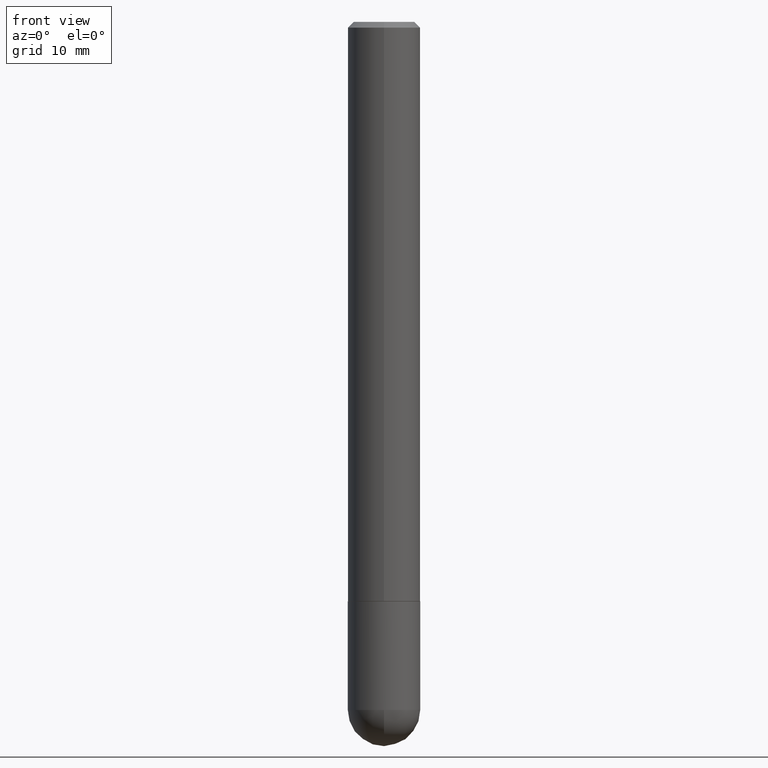
[diagram: clean part render]
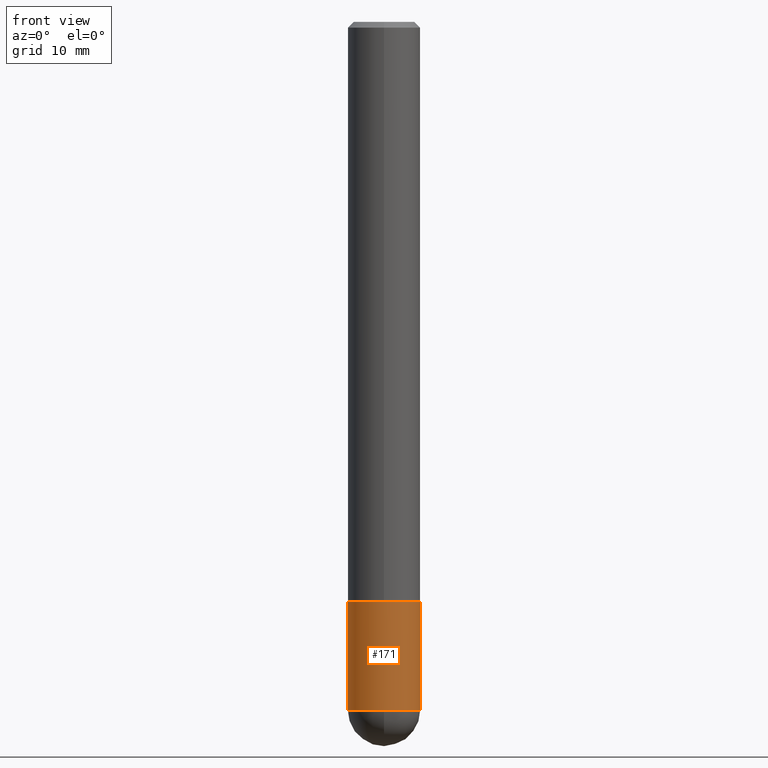
[diagram: same view with one face highlighted and labeled with its STEP entity id]
A machine part, front view. The second image highlights one B-rep face of the part: STEP entity #171.
In plain terms, the highlighted cylindrical surface (edge-blend (fillet) strip) has radius 3.175 mm, axis along (-0, 0, 1).
Its self-contained STEP definition (entity closure, byte-faithful):
#7 = ORIENTED_EDGE ( 'NONE', *, *, #237, .F. ) ;
#42 = DIRECTION ( 'NONE',  ( 1.000000000000000000, -6.982962677686269077E-15, 0.000000000000000000 ) ) ;
#56 = CARTESIAN_POINT ( 'NONE',  ( -0.1250000000000000278, 8.881784197001254296E-16, -6.148668862818634329E-30 ) ) ;
#57 = LINE ( 'NONE', #56, #334 ) ;
#61 = VERTEX_POINT ( 'NONE', #222 ) ;
#70 = VERTEX_POINT ( 'NONE', #109 ) ;
#72 = EDGE_LOOP ( 'NONE', ( #7, #325, #327, #353, #94 ) ) ;
#80 = DIRECTION ( 'NONE',  ( -2.445468806185136597E-29, 3.491481338843145583E-15, 1.000000000000000000 ) ) ;
#82 = AXIS2_PLACEMENT_3D ( 'NONE', #236, #332, #42 ) ;
#94 = ORIENTED_EDGE ( 'NONE', *, *, #331, .F. ) ;
#104 = CARTESIAN_POINT ( 'NONE',  ( 4.890937612370273194E-29, -6.982962677686291165E-15, -2.000000000000000000 ) ) ;
#109 = CARTESIAN_POINT ( 'NONE',  ( -8.881784197000695190E-16, -0.1250000000000086320, -2.374999999999999112 ) ) ;
#113 = VECTOR ( 'NONE', #212, 39.37007874015748143 ) ;
#118 = EDGE_CURVE ( 'NONE', #202, #255, #251, .T. ) ;
#120 = CARTESIAN_POINT ( 'NONE',  ( 0.000000000000000000, 0.000000000000000000, 0.000000000000000000 ) ) ;
#131 = DIRECTION ( 'NONE',  ( -2.445468806185136597E-29, 3.491481338843145583E-15, 1.000000000000000000 ) ) ;
#132 = AXIS2_PLACEMENT_3D ( 'NONE', #120, #80, #340 ) ;
#146 = CIRCLE ( 'NONE', #365, 0.1250000000000000278 ) ;
#152 = CIRCLE ( 'NONE', #82, 0.1250000000000000278 ) ;
#169 = DIRECTION ( 'NONE',  ( 1.000000000000000000, -6.982962677686269077E-15, 0.000000000000000000 ) ) ;
#171 = ADVANCED_FACE ( 'NONE', ( #307 ), #312, .T. ) ;
#183 = CARTESIAN_POINT ( 'NONE',  ( 0.1250000000000000278, -8.728703347107836346E-16, 6.095220969744921142E-30 ) ) ;
#184 = AXIS2_PLACEMENT_3D ( 'NONE', #104, #231, #169 ) ;
#188 = CARTESIAN_POINT ( 'NONE',  ( 0.1250000000000000278, -7.855833012397075293E-15, -2.000000000000000000 ) ) ;
#200 = VERTEX_POINT ( 'NONE', #274 ) ;
#202 = VERTEX_POINT ( 'NONE', #402 ) ;
#212 = DIRECTION ( 'NONE',  ( -2.445468806185136877E-29, 3.491481338843145188E-15, 1.000000000000000000 ) ) ;
#222 = CARTESIAN_POINT ( 'NONE',  ( -0.1250000000000000278, -6.749437009019255015E-15, -2.000000000000000000 ) ) ;
#231 = DIRECTION ( 'NONE',  ( -2.445468806185136597E-29, 3.491481338843145583E-15, 1.000000000000000000 ) ) ;
#236 = CARTESIAN_POINT ( 'NONE',  ( 5.807988414689698296E-29, -8.292268179752468540E-15, -2.374999999999999556 ) ) ;
#237 = EDGE_CURVE ( 'NONE', #200, #61, #57, .T. ) ;
#251 = LINE ( 'NONE', #183, #113 ) ;
#255 = VERTEX_POINT ( 'NONE', #188 ) ;
#258 = CIRCLE ( 'NONE', #184, 0.1250000000000000278 ) ;
#260 = CARTESIAN_POINT ( 'NONE',  ( 5.807988414689698296E-29, -8.292268179752468540E-15, -2.374999999999999556 ) ) ;
#274 = CARTESIAN_POINT ( 'NONE',  ( -0.1250000000000000278, -6.749437009019255804E-15, -2.374999999999999556 ) ) ;
#307 = FACE_OUTER_BOUND ( 'NONE', #72, .T. ) ;
#312 = CYLINDRICAL_SURFACE ( 'NONE', #132, 0.1250000000000000278 ) ;
#313 = EDGE_CURVE ( 'NONE', #200, #70, #146, .T. ) ;
#325 = ORIENTED_EDGE ( 'NONE', *, *, #313, .T. ) ;
#327 = ORIENTED_EDGE ( 'NONE', *, *, #374, .T. ) ;
#329 = DIRECTION ( 'NONE',  ( 1.000000000000000000, -6.982962677686269077E-15, 0.000000000000000000 ) ) ;
#331 = EDGE_CURVE ( 'NONE', #61, #255, #258, .T. ) ;
#332 = DIRECTION ( 'NONE',  ( -2.445468806185136597E-29, 3.491481338843145583E-15, 1.000000000000000000 ) ) ;
#334 = VECTOR ( 'NONE', #407, 39.37007874015748143 ) ;
#340 = DIRECTION ( 'NONE',  ( 1.000000000000000000, -6.982962677686267499E-15, 4.876176775795935793E-29 ) ) ;
#353 = ORIENTED_EDGE ( 'NONE', *, *, #118, .T. ) ;
#365 = AXIS2_PLACEMENT_3D ( 'NONE', #260, #131, #329 ) ;
#374 = EDGE_CURVE ( 'NONE', #70, #202, #152, .T. ) ;
#402 = CARTESIAN_POINT ( 'NONE',  ( 0.1250000000000000278, -8.510485763430165164E-15, -2.374999999999999556 ) ) ;
#407 = DIRECTION ( 'NONE',  ( -2.445468806185136877E-29, 3.491481338843145188E-15, 1.000000000000000000 ) ) ;